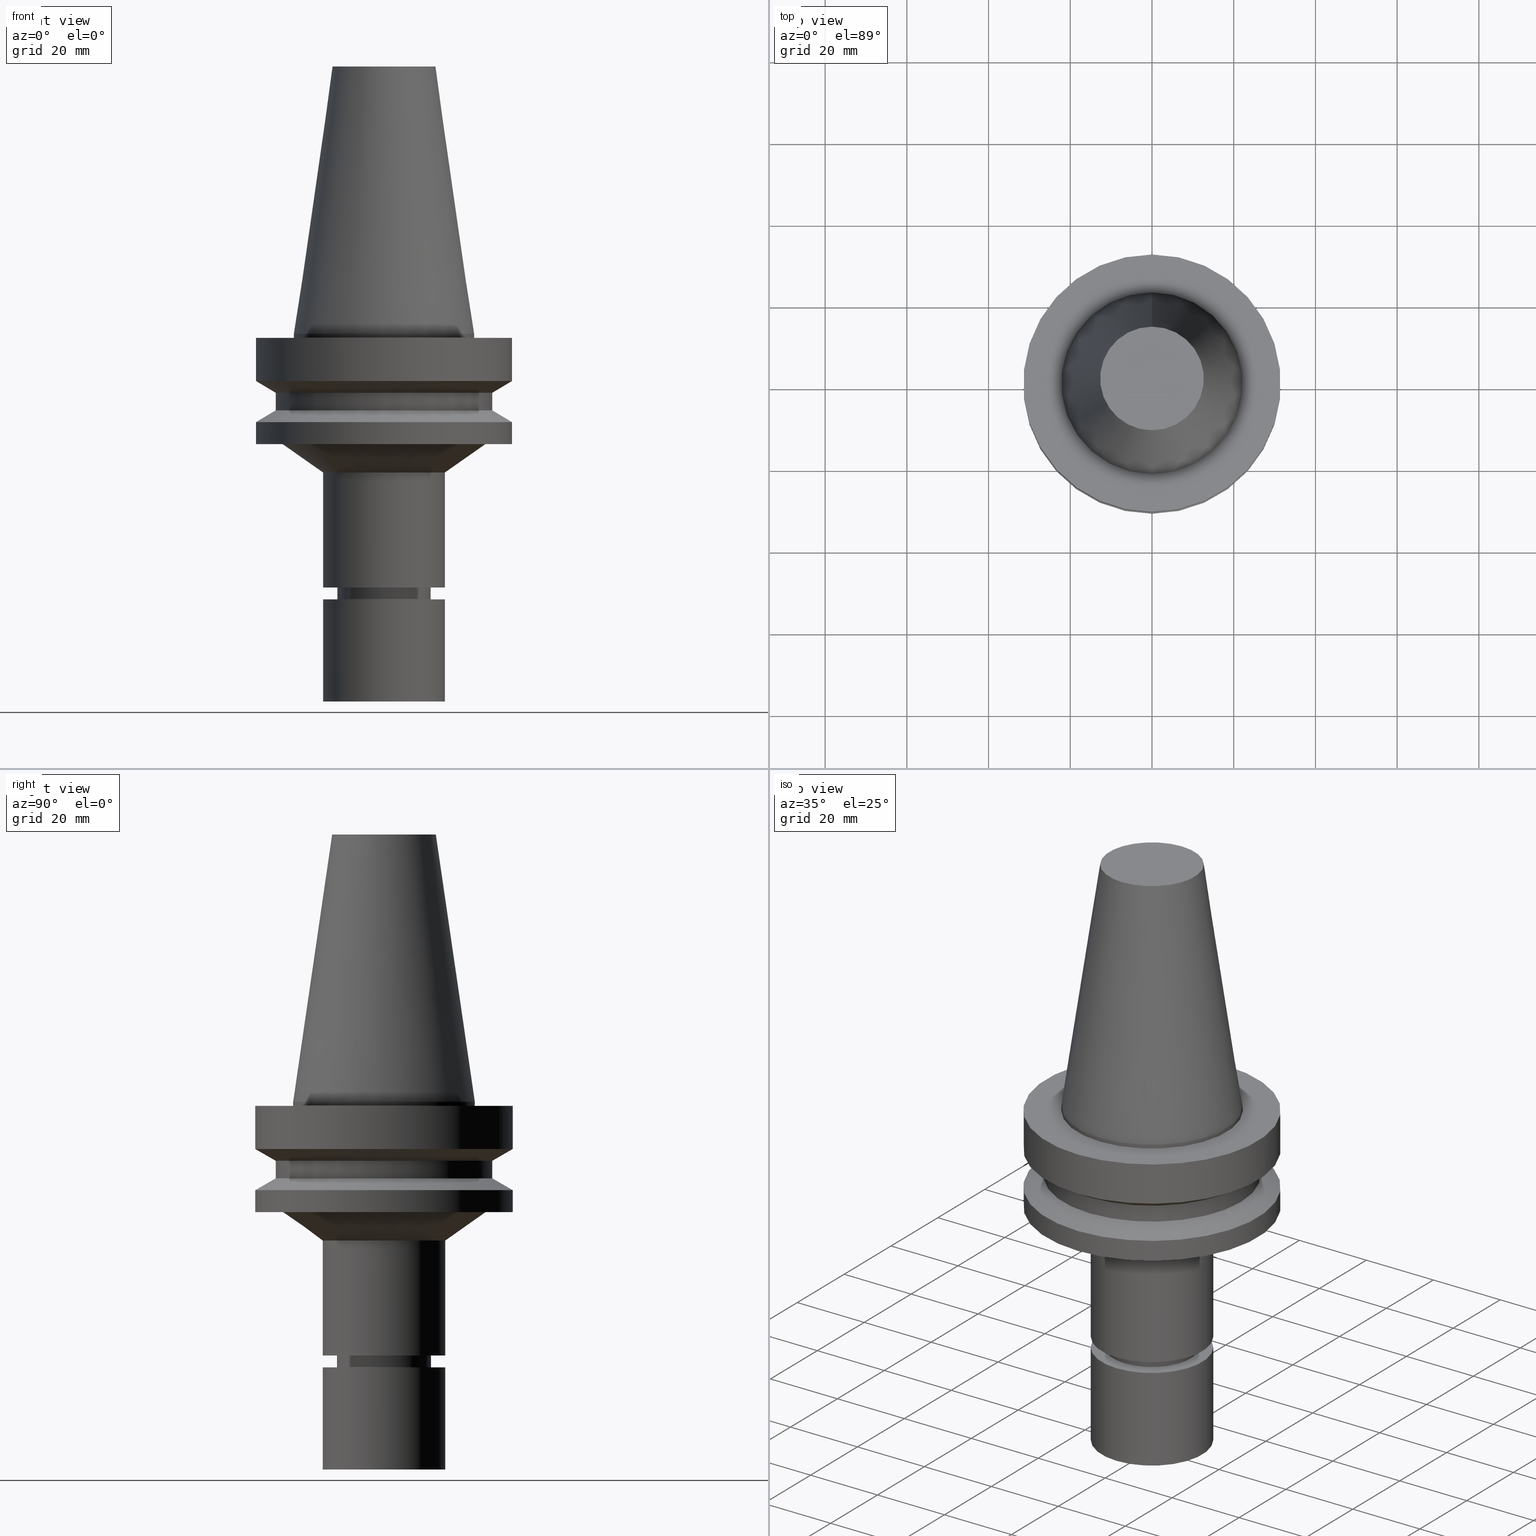
[diagram: canonical four-view strip — front | top / right | iso, engineering-drawing reading convention]
A machine part, canonical four-view strip (front | top / right | iso — engineering-drawing reading convention). The complete STEP part file that produces these views, byte-faithful:
ISO-10303-21;
HEADER;
FILE_DESCRIPTION((''),'1');
FILE_NAME('V:/90_\X2\53D65F9730C730FC30BF\X0\/00_\X2\6DE18DEF30C730FC30BF\X0\/ALL/BBT-BKUS\X2\FF76FF80FF9BFF78FF9E752852A05DE556F3\X0\201801/BBT40-MEGAER/BBT40-MEGAER16-90NL.stp','2018-02-07T01:42:59',(''),(''),'Spatial Interop R21 SP3','Kubotek KeyCreator 2011 V10.0.2 (22737)',' ');
FILE_SCHEMA(('automotive_design'));
ENDSEC;
DATA;
#1=MECHANICAL_DESIGN_GEOMETRIC_PRESENTATION_REPRESENTATION(' ',(#14,#15,#16,#17,#18,#19,#20,#21,#22,#23,#24,#25,#26,#27,#28,#29,#30,#31,#32,#33,#34,#35,#36,#37,#38,#39,#40,#41,#42,#43,#44,#45,#46,#47,#48,#49,#50,#51,#52,#53,#54,#55),#10);
#2=PRODUCT_DEFINITION_CONTEXT('',#56,'design');
#3=APPLICATION_PROTOCOL_DEFINITION('INTERNATIONAL STANDARD','automotive_design',1994,#56);
#4=PRODUCT_CATEGORY_RELATIONSHIP('NONE','NONE',#57,#58);
#5=SHAPE_DEFINITION_REPRESENTATION(#59,#60);
#6=PRODUCT_DEFINITION_CONTEXT('',#61,'design');
#7=APPLICATION_PROTOCOL_DEFINITION('INTERNATIONAL STANDARD','automotive_design',1994,#61);
#8=PRODUCT_CATEGORY_RELATIONSHIP('NONE','NONE',#62,#63);
#9=SHAPE_DEFINITION_REPRESENTATION(#64,#65);
#10= (GEOMETRIC_REPRESENTATION_CONTEXT(3)GLOBAL_UNCERTAINTY_ASSIGNED_CONTEXT((#68))GLOBAL_UNIT_ASSIGNED_CONTEXT((#70,#71,#72))REPRESENTATION_CONTEXT('NONE','WORKSPACE'));
#14=STYLED_ITEM('',(#74),#75);
#15=STYLED_ITEM('',(#76,#77),#78);
#16=STYLED_ITEM('',(#79),#80);
#17=STYLED_ITEM('',(#81),#82);
#18=STYLED_ITEM('',(#83),#84);
#19=STYLED_ITEM('',(#85),#86);
#20=STYLED_ITEM('',(#87),#88);
#21=STYLED_ITEM('',(#89,#90),#91);
#22=STYLED_ITEM('',(#92,#93),#94);
#23=STYLED_ITEM('',(#95,#96),#97);
#24=STYLED_ITEM('',(#98),#99);
#25=STYLED_ITEM('',(#100,#101),#102);
#26=STYLED_ITEM('',(#103),#104);
#27=STYLED_ITEM('',(#105,#106),#107);
#28=STYLED_ITEM('',(#108),#109);
#29=STYLED_ITEM('',(#110,#111),#112);
#30=STYLED_ITEM('',(#113,#114),#115);
#31=STYLED_ITEM('',(#116),#117);
#32=STYLED_ITEM('',(#118,#119),#120);
#33=STYLED_ITEM('',(#121,#122),#123);
#34=STYLED_ITEM('',(#124,#125),#126);
#35=STYLED_ITEM('',(#127,#128),#129);
#36=STYLED_ITEM('',(#130),#131);
#37=STYLED_ITEM('',(#132),#133);
#38=STYLED_ITEM('',(#134,#135),#136);
#39=STYLED_ITEM('',(#137,#138),#139);
#40=STYLED_ITEM('',(#140),#141);
#41=STYLED_ITEM('',(#142,#143),#144);
#42=STYLED_ITEM('',(#145,#146),#147);
#43=STYLED_ITEM('',(#148),#149);
#44=STYLED_ITEM('',(#150),#151);
#45=STYLED_ITEM('',(#152,#153),#154);
#46=STYLED_ITEM('',(#155,#156),#157);
#47=STYLED_ITEM('',(#158,#159),#160);
#48=STYLED_ITEM('',(#161,#162),#163);
#49=STYLED_ITEM('',(#164),#165);
#50=STYLED_ITEM('',(#166),#167);
#51=STYLED_ITEM('',(#168,#169),#170);
#52=STYLED_ITEM('',(#171),#172);
#53=STYLED_ITEM('',(#173,#174),#175);
#54=STYLED_ITEM('',(#176),#177);
#55=STYLED_ITEM('',(#178,#179),#180);
#56=APPLICATION_CONTEXT(' ');
#57=PRODUCT_CATEGORY('part','NONE');
#58=PRODUCT_RELATED_PRODUCT_CATEGORY('detail',' ',(#181));
#59=PRODUCT_DEFINITION_SHAPE('NONE','NONE',#182);
#60=ADVANCED_BREP_SHAPE_REPRESENTATION('Unnamed[1]',(#147,#183),#10);
#61=APPLICATION_CONTEXT(' ');
#62=PRODUCT_CATEGORY('part','NONE');
#63=PRODUCT_RELATED_PRODUCT_CATEGORY('detail',' ',(#184));
#64=PRODUCT_DEFINITION_SHAPE('NONE','NONE',#185);
#65=ADVANCED_BREP_SHAPE_REPRESENTATION('Unnamed[1]',(#107,#186),#10);
#68=UNCERTAINTY_MEASURE_WITH_UNIT(LENGTH_MEASURE(1.0E-006),#70,'','');
#70= (CONVERSION_BASED_UNIT('MILLIMETRE',#189)LENGTH_UNIT()NAMED_UNIT(#192));
#71= (NAMED_UNIT(#194)PLANE_ANGLE_UNIT()SI_UNIT($,.RADIAN.));
#72= (NAMED_UNIT(#194)SOLID_ANGLE_UNIT()SI_UNIT($,.STERADIAN.));
#74=PRESENTATION_STYLE_ASSIGNMENT((#200));
#75=EDGE_CURVE('Unnamed[1]',#201,#201,#202,.T.);
#76=PRESENTATION_STYLE_ASSIGNMENT((#203));
#77=PRESENTATION_STYLE_ASSIGNMENT((#204));
#78=ADVANCED_FACE('Unnamed[1]',(#205,#206),#207,.T.);
#79=PRESENTATION_STYLE_ASSIGNMENT((#208));
#80=EDGE_CURVE('Unnamed[1]',#209,#209,#210,.T.);
#81=PRESENTATION_STYLE_ASSIGNMENT((#211));
#82=EDGE_CURVE('Unnamed[1]',#212,#212,#213,.T.);
#83=PRESENTATION_STYLE_ASSIGNMENT((#214));
#84=EDGE_CURVE('Unnamed[1]',#215,#215,#216,.T.);
#85=PRESENTATION_STYLE_ASSIGNMENT((#217));
#86=EDGE_CURVE('Unnamed[1]',#218,#218,#219,.T.);
#87=PRESENTATION_STYLE_ASSIGNMENT((#220));
#88=EDGE_CURVE('Unnamed[1]',#221,#221,#222,.T.);
#89=PRESENTATION_STYLE_ASSIGNMENT((#223));
#90=PRESENTATION_STYLE_ASSIGNMENT((#224));
#91=ADVANCED_FACE('Unnamed[1]',(#225,#226),#227,.T.);
#92=PRESENTATION_STYLE_ASSIGNMENT((#228));
#93=PRESENTATION_STYLE_ASSIGNMENT((#229));
#94=ADVANCED_FACE('Unnamed[1]',(#230,#231),#232,.T.);
#95=PRESENTATION_STYLE_ASSIGNMENT((#233));
#96=PRESENTATION_STYLE_ASSIGNMENT((#234));
#97=ADVANCED_FACE('Unnamed[1]',(#235,#236),#237,.T.);
#98=PRESENTATION_STYLE_ASSIGNMENT((#238));
#99=EDGE_CURVE('Unnamed[1]',#239,#239,#240,.T.);
#100=PRESENTATION_STYLE_ASSIGNMENT((#241));
#101=PRESENTATION_STYLE_ASSIGNMENT((#242));
#102=ADVANCED_FACE('Unnamed[1]',(#243,#244),#245,.T.);
#103=PRESENTATION_STYLE_ASSIGNMENT((#246));
#104=EDGE_CURVE('Unnamed[1]',#247,#247,#248,.T.);
#105=PRESENTATION_STYLE_ASSIGNMENT((#249));
#106=PRESENTATION_STYLE_ASSIGNMENT((#250));
#107=MANIFOLD_SOLID_BREP('Unnamed[1]',#251);
#108=PRESENTATION_STYLE_ASSIGNMENT((#252));
#109=EDGE_CURVE('Unnamed[1]',#253,#253,#254,.T.);
#110=PRESENTATION_STYLE_ASSIGNMENT((#255));
#111=PRESENTATION_STYLE_ASSIGNMENT((#256));
#112=ADVANCED_FACE('Unnamed[1]',(#257,#258),#259,.T.);
#113=PRESENTATION_STYLE_ASSIGNMENT((#260));
#114=PRESENTATION_STYLE_ASSIGNMENT((#261));
#115=ADVANCED_FACE('Unnamed[1]',(#262),#263,.T.);
#116=PRESENTATION_STYLE_ASSIGNMENT((#264));
#117=EDGE_CURVE('Unnamed[1]',#265,#265,#266,.T.);
#118=PRESENTATION_STYLE_ASSIGNMENT((#267));
#119=PRESENTATION_STYLE_ASSIGNMENT((#268));
#120=ADVANCED_FACE('Unnamed[1]',(#269,#270),#271,.T.);
#121=PRESENTATION_STYLE_ASSIGNMENT((#272));
#122=PRESENTATION_STYLE_ASSIGNMENT((#273));
#123=ADVANCED_FACE('Unnamed[1]',(#274,#275),#276,.T.);
#124=PRESENTATION_STYLE_ASSIGNMENT((#277));
#125=PRESENTATION_STYLE_ASSIGNMENT((#278));
#126=ADVANCED_FACE('Unnamed[1]',(#279,#280),#281,.T.);
#127=PRESENTATION_STYLE_ASSIGNMENT((#282));
#128=PRESENTATION_STYLE_ASSIGNMENT((#283));
#129=ADVANCED_FACE('Unnamed[1]',(#284,#285),#286,.T.);
#130=PRESENTATION_STYLE_ASSIGNMENT((#287));
#131=EDGE_CURVE('Unnamed[1]',#288,#288,#289,.T.);
#132=PRESENTATION_STYLE_ASSIGNMENT((#290));
#133=EDGE_CURVE('Unnamed[1]',#291,#291,#292,.T.);
#134=PRESENTATION_STYLE_ASSIGNMENT((#293));
#135=PRESENTATION_STYLE_ASSIGNMENT((#294));
#136=ADVANCED_FACE('Unnamed[1]',(#295),#296,.T.);
#137=PRESENTATION_STYLE_ASSIGNMENT((#297));
#138=PRESENTATION_STYLE_ASSIGNMENT((#298));
#139=ADVANCED_FACE('Unnamed[1]',(#299,#300),#301,.T.);
#140=PRESENTATION_STYLE_ASSIGNMENT((#302));
#141=EDGE_CURVE('Unnamed[1]',#303,#303,#304,.T.);
#142=PRESENTATION_STYLE_ASSIGNMENT((#305));
#143=PRESENTATION_STYLE_ASSIGNMENT((#306));
#144=ADVANCED_FACE('Unnamed[1]',(#307),#308,.T.);
#145=PRESENTATION_STYLE_ASSIGNMENT((#309));
#146=PRESENTATION_STYLE_ASSIGNMENT((#310));
#147=MANIFOLD_SOLID_BREP('Unnamed[1]',#311);
#148=PRESENTATION_STYLE_ASSIGNMENT((#312));
#149=EDGE_CURVE('Unnamed[1]',#313,#313,#314,.T.);
#150=PRESENTATION_STYLE_ASSIGNMENT((#315));
#151=EDGE_CURVE('Unnamed[1]',#316,#316,#317,.T.);
#152=PRESENTATION_STYLE_ASSIGNMENT((#318));
#153=PRESENTATION_STYLE_ASSIGNMENT((#319));
#154=ADVANCED_FACE('Unnamed[1]',(#320),#321,.T.);
#155=PRESENTATION_STYLE_ASSIGNMENT((#322));
#156=PRESENTATION_STYLE_ASSIGNMENT((#323));
#157=ADVANCED_FACE('Unnamed[1]',(#324,#325),#326,.T.);
#158=PRESENTATION_STYLE_ASSIGNMENT((#327));
#159=PRESENTATION_STYLE_ASSIGNMENT((#328));
#160=ADVANCED_FACE('Unnamed[1]',(#329,#330),#331,.T.);
#161=PRESENTATION_STYLE_ASSIGNMENT((#332));
#162=PRESENTATION_STYLE_ASSIGNMENT((#333));
#163=ADVANCED_FACE('Unnamed[1]',(#334,#335),#336,.T.);
#164=PRESENTATION_STYLE_ASSIGNMENT((#337));
#165=EDGE_CURVE('Unnamed[1]',#338,#338,#339,.T.);
#166=PRESENTATION_STYLE_ASSIGNMENT((#340));
#167=EDGE_CURVE('Unnamed[1]',#341,#341,#342,.T.);
#168=PRESENTATION_STYLE_ASSIGNMENT((#343));
#169=PRESENTATION_STYLE_ASSIGNMENT((#344));
#170=ADVANCED_FACE('Unnamed[1]',(#345,#346),#347,.T.);
#171=PRESENTATION_STYLE_ASSIGNMENT((#348));
#172=EDGE_CURVE('Unnamed[1]',#349,#349,#350,.T.);
#173=PRESENTATION_STYLE_ASSIGNMENT((#351));
#174=PRESENTATION_STYLE_ASSIGNMENT((#352));
#175=ADVANCED_FACE('Unnamed[1]',(#353,#354),#355,.T.);
#176=PRESENTATION_STYLE_ASSIGNMENT((#356));
#177=EDGE_CURVE('Unnamed[1]',#357,#357,#358,.T.);
#178=PRESENTATION_STYLE_ASSIGNMENT((#359));
#179=PRESENTATION_STYLE_ASSIGNMENT((#360));
#180=ADVANCED_FACE('Unnamed[1]',(#361,#362),#363,.T.);
#181=PRODUCT('Unnamed[1]','Unnamed[1]','PART-Unnamed[1]-DESC',(#364));
#182=PRODUCT_DEFINITION('NONE','NONE',#365,#2);
#183=AXIS2_PLACEMENT_3D('',#366,#367,#368);
#184=PRODUCT('Unnamed[1]','Unnamed[1]','PART-Unnamed[1]-DESC',(#369));
#185=PRODUCT_DEFINITION('NONE','NONE',#370,#6);
#186=AXIS2_PLACEMENT_3D('',#371,#372,#373);
#189=LENGTH_MEASURE_WITH_UNIT(LENGTH_MEASURE(1.0),#374);
#192=DIMENSIONAL_EXPONENTS(1.0,0.0,0.0,0.0,0.0,0.0,0.0);
#194=DIMENSIONAL_EXPONENTS(0.0,0.0,0.0,0.0,0.0,0.0,0.0);
#200=CURVE_STYLE('',#375,POSITIVE_LENGTH_MEASURE(1000.0),#376);
#201=VERTEX_POINT('',#377);
#202=CIRCLE('',#378,31.5000000000006);
#203=SURFACE_STYLE_USAGE(.BOTH.,#379);
#204=CURVE_STYLE('',#380,POSITIVE_LENGTH_MEASURE(1000.0),#381);
#205=FACE_BOUND('',#382,.T.);
#206=FACE_BOUND('',#383,.T.);
#207=CYLINDRICAL_SURFACE('',#384,22.225);
#208=CURVE_STYLE('',#385,POSITIVE_LENGTH_MEASURE(1000.0),#386);
#209=VERTEX_POINT('',#387);
#210=CIRCLE('',#388,15.0000000000004);
#211=CURVE_STYLE('',#389,POSITIVE_LENGTH_MEASURE(1000.0),#390);
#212=VERTEX_POINT('',#391);
#213=CIRCLE('',#392,15.0);
#214=CURVE_STYLE('',#393,POSITIVE_LENGTH_MEASURE(1000.0),#394);
#215=VERTEX_POINT('',#395);
#216=CIRCLE('',#396,11.4999999999906);
#217=CURVE_STYLE('',#397,POSITIVE_LENGTH_MEASURE(1000.0),#398);
#218=VERTEX_POINT('',#399);
#219=CIRCLE('',#400,9.89999999999952);
#220=CURVE_STYLE('',#401,POSITIVE_LENGTH_MEASURE(1000.0),#402);
#221=VERTEX_POINT('',#403);
#222=CIRCLE('',#404,14.9999999999999);
#223=SURFACE_STYLE_USAGE(.BOTH.,#405);
#224=CURVE_STYLE('',#406,POSITIVE_LENGTH_MEASURE(1000.0),#407);
#225=FACE_BOUND('',#408,.T.);
#226=FACE_BOUND('',#409,.T.);
#227=CYLINDRICAL_SURFACE('',#410,11.4999999999963);
#228=SURFACE_STYLE_USAGE(.BOTH.,#411);
#229=CURVE_STYLE('',#412,POSITIVE_LENGTH_MEASURE(1000.0),#413);
#230=FACE_BOUND('',#414,.T.);
#231=FACE_BOUND('',#415,.T.);
#232=CYLINDRICAL_SURFACE('',#416,11.0);
#233=SURFACE_STYLE_USAGE(.BOTH.,#417);
#234=CURVE_STYLE('',#418,POSITIVE_LENGTH_MEASURE(1000.0),#419);
#235=FACE_BOUND('',#420,.T.);
#236=FACE_BOUND('',#421,.T.);
#237=CYLINDRICAL_SURFACE('',#422,15.0);
#238=CURVE_STYLE('',#423,POSITIVE_LENGTH_MEASURE(1000.0),#424);
#239=VERTEX_POINT('',#425);
#240=CIRCLE('',#426,15.0);
#241=SURFACE_STYLE_USAGE(.BOTH.,#427);
#242=CURVE_STYLE('',#428,POSITIVE_LENGTH_MEASURE(1000.0),#429);
#243=FACE_BOUND('',#430,.T.);
#244=FACE_OUTER_BOUND('',#431,.T.);
#245=PLANE('',#432);
#246=CURVE_STYLE('',#433,POSITIVE_LENGTH_MEASURE(1000.0),#434);
#247=VERTEX_POINT('',#435);
#248=CIRCLE('',#436,11.500000000002);
#249=SURFACE_STYLE_USAGE(.BOTH.,#437);
#250=CURVE_STYLE('',#438,POSITIVE_LENGTH_MEASURE(1000.0),#439);
#251=CLOSED_SHELL('',(#154,#136,#97));
#252=CURVE_STYLE('',#440,POSITIVE_LENGTH_MEASURE(1000.0),#441);
#253=VERTEX_POINT('',#442);
#254=CIRCLE('',#443,24.8688249295048);
#255=SURFACE_STYLE_USAGE(.BOTH.,#444);
#256=CURVE_STYLE('',#445,POSITIVE_LENGTH_MEASURE(1000.0),#446);
#257=FACE_BOUND('',#447,.T.);
#258=FACE_BOUND('',#448,.T.);
#259=CONICAL_SURFACE('',#449,11.2500000000009,1.04719755118904);
#260=SURFACE_STYLE_USAGE(.BOTH.,#450);
#261=CURVE_STYLE('',#451,POSITIVE_LENGTH_MEASURE(1000.0),#452);
#262=FACE_OUTER_BOUND('',#453,.T.);
#263=PLANE('',#454);
#264=CURVE_STYLE('',#455,POSITIVE_LENGTH_MEASURE(1000.0),#456);
#265=VERTEX_POINT('',#457);
#266=CIRCLE('',#458,22.225);
#267=SURFACE_STYLE_USAGE(.BOTH.,#459);
#268=CURVE_STYLE('',#460,POSITIVE_LENGTH_MEASURE(1000.0),#461);
#269=FACE_BOUND('',#462,.T.);
#270=FACE_OUTER_BOUND('',#463,.T.);
#271=PLANE('',#464);
#272=SURFACE_STYLE_USAGE(.BOTH.,#465);
#273=CURVE_STYLE('',#466,POSITIVE_LENGTH_MEASURE(1000.0),#467);
#274=FACE_BOUND('',#468,.T.);
#275=FACE_BOUND('',#469,.T.);
#276=CYLINDRICAL_SURFACE('',#470,31.5);
#277=SURFACE_STYLE_USAGE(.BOTH.,#471);
#278=CURVE_STYLE('',#472,POSITIVE_LENGTH_MEASURE(1000.0),#473);
#279=FACE_BOUND('',#474,.T.);
#280=FACE_BOUND('',#475,.T.);
#281=CONICAL_SURFACE('',#476,17.45625,0.144812498238936);
#282=SURFACE_STYLE_USAGE(.BOTH.,#477);
#283=CURVE_STYLE('',#478,POSITIVE_LENGTH_MEASURE(1000.0),#479);
#284=FACE_BOUND('',#480,.T.);
#285=FACE_BOUND('',#481,.T.);
#286=CYLINDRICAL_SURFACE('',#482,31.5000000000005);
#287=CURVE_STYLE('',#483,POSITIVE_LENGTH_MEASURE(1000.0),#484);
#288=VERTEX_POINT('',#485);
#289=CIRCLE('',#486,31.5000000000003);
#290=CURVE_STYLE('',#487,POSITIVE_LENGTH_MEASURE(1000.0),#488);
#291=VERTEX_POINT('',#489);
#292=CIRCLE('',#490,31.5000000000003);
#293=SURFACE_STYLE_USAGE(.BOTH.,#491);
#294=CURVE_STYLE('',#492,POSITIVE_LENGTH_MEASURE(1000.0),#493);
#295=FACE_OUTER_BOUND('',#494,.T.);
#296=PLANE('',#495);
#297=SURFACE_STYLE_USAGE(.BOTH.,#496);
#298=CURVE_STYLE('',#497,POSITIVE_LENGTH_MEASURE(1000.0),#498);
#299=FACE_BOUND('',#499,.T.);
#300=FACE_BOUND('',#500,.T.);
#301=CONICAL_SURFACE('',#501,29.0000000000003,1.04719755119651);
#302=CURVE_STYLE('',#502,POSITIVE_LENGTH_MEASURE(1000.0),#503);
#303=VERTEX_POINT('',#504);
#304=CIRCLE('',#505,11.0000000000002);
#305=SURFACE_STYLE_USAGE(.BOTH.,#506);
#306=CURVE_STYLE('',#507,POSITIVE_LENGTH_MEASURE(1000.0),#508);
#307=FACE_OUTER_BOUND('',#509,.T.);
#308=PLANE('',#510);
#309=SURFACE_STYLE_USAGE(.BOTH.,#511);
#310=CURVE_STYLE('',#512,POSITIVE_LENGTH_MEASURE(1000.0),#513);
#311=CLOSED_SHELL('',(#144,#126,#78,#163,#123,#160,#170,#139,#129,#120,#175,#157,#102,#91,#112,#94,#180,#115));
#312=CURVE_STYLE('',#514,POSITIVE_LENGTH_MEASURE(1000.0),#515);
#313=VERTEX_POINT('',#516);
#314=CIRCLE('',#517,31.4999999999996);
#315=CURVE_STYLE('',#518,POSITIVE_LENGTH_MEASURE(1000.0),#519);
#316=VERTEX_POINT('',#520);
#317=CIRCLE('',#521,10.9999999999998);
#318=SURFACE_STYLE_USAGE(.BOTH.,#522);
#319=CURVE_STYLE('',#523,POSITIVE_LENGTH_MEASURE(1000.0),#524);
#320=FACE_OUTER_BOUND('',#525,.T.);
#321=PLANE('',#526);
#322=SURFACE_STYLE_USAGE(.BOTH.,#527);
#323=CURVE_STYLE('',#528,POSITIVE_LENGTH_MEASURE(1000.0),#529);
#324=FACE_BOUND('',#530,.T.);
#325=FACE_BOUND('',#531,.T.);
#326=CYLINDRICAL_SURFACE('',#532,15.0000000000002);
#327=SURFACE_STYLE_USAGE(.BOTH.,#533);
#328=CURVE_STYLE('',#534,POSITIVE_LENGTH_MEASURE(1000.0),#535);
#329=FACE_BOUND('',#536,.T.);
#330=FACE_BOUND('',#537,.T.);
#331=CONICAL_SURFACE('',#538,28.9999999999999,1.04719755119657);
#332=SURFACE_STYLE_USAGE(.BOTH.,#539);
#333=CURVE_STYLE('',#540,POSITIVE_LENGTH_MEASURE(1000.0),#541);
#334=FACE_OUTER_BOUND('',#542,.T.);
#335=FACE_BOUND('',#543,.T.);
#336=PLANE('',#544);
#337=CURVE_STYLE('',#545,POSITIVE_LENGTH_MEASURE(1000.0),#546);
#338=VERTEX_POINT('',#547);
#339=CIRCLE('',#548,12.6875000000001);
#340=CURVE_STYLE('',#549,POSITIVE_LENGTH_MEASURE(1000.0),#550);
#341=VERTEX_POINT('',#551);
#342=CIRCLE('',#552,26.4999999999994);
#343=SURFACE_STYLE_USAGE(.BOTH.,#553);
#344=CURVE_STYLE('',#554,POSITIVE_LENGTH_MEASURE(1000.0),#555);
#345=FACE_BOUND('',#556,.T.);
#346=FACE_BOUND('',#557,.T.);
#347=CYLINDRICAL_SURFACE('',#558,26.4999999999997);
#348=CURVE_STYLE('',#559,POSITIVE_LENGTH_MEASURE(1000.0),#560);
#349=VERTEX_POINT('',#561);
#350=CIRCLE('',#562,26.5);
#351=SURFACE_STYLE_USAGE(.BOTH.,#563);
#352=CURVE_STYLE('',#564,POSITIVE_LENGTH_MEASURE(1000.0),#565);
#353=FACE_BOUND('',#566,.T.);
#354=FACE_BOUND('',#567,.T.);
#355=CONICAL_SURFACE('',#568,19.9344124647526,0.956240827688239);
#356=CURVE_STYLE('',#569,POSITIVE_LENGTH_MEASURE(1000.0),#570);
#357=VERTEX_POINT('',#571);
#358=CIRCLE('',#572,22.225);
#359=SURFACE_STYLE_USAGE(.BOTH.,#573);
#360=CURVE_STYLE('',#574,POSITIVE_LENGTH_MEASURE(1000.0),#575);
#361=FACE_BOUND('',#576,.T.);
#362=FACE_BOUND('',#577,.T.);
#363=CONICAL_SURFACE('',#578,10.4499999999999,0.523598775598227);
#364=PRODUCT_CONTEXT('',#56,'mechanical');
#365=PRODUCT_DEFINITION_FORMATION_WITH_SPECIFIED_SOURCE(' ','NONE',#181,.NOT_KNOWN.);
#366=CARTESIAN_POINT('',(0.0,0.0,0.0));
#367=DIRECTION('',(0.0,0.0,1.0));
#368=DIRECTION('',(1.0,0.0,0.0));
#369=PRODUCT_CONTEXT('',#61,'mechanical');
#370=PRODUCT_DEFINITION_FORMATION_WITH_SPECIFIED_SOURCE(' ','NONE',#184,.NOT_KNOWN.);
#371=CARTESIAN_POINT('',(0.0,0.0,0.0));
#372=DIRECTION('',(0.0,0.0,1.0));
#373=DIRECTION('',(1.0,0.0,0.0));
#374= (NAMED_UNIT(#192)LENGTH_UNIT()SI_UNIT(.MILLI.,.METRE.));
#375=DRAUGHTING_PRE_DEFINED_CURVE_FONT('continuous');
#376=COLOUR_RGB('',0.0,1.0,0.0);
#377=CARTESIAN_POINT('',(1.32473071268174E-015,31.5000000000007,-21.6344943473346));
#378=AXIS2_PLACEMENT_3D('',#580,#581,#582);
#379=SURFACE_SIDE_STYLE('',(#583));
#380=DRAUGHTING_PRE_DEFINED_CURVE_FONT('continuous');
#381=COLOUR_RGB('',0.0,1.0,0.0);
#382=EDGE_LOOP('',(#584));
#383=EDGE_LOOP('',(#585));
#384=AXIS2_PLACEMENT_3D('',#586,#587,#588);
#385=DRAUGHTING_PRE_DEFINED_CURVE_FONT('continuous');
#386=COLOUR_RGB('',0.0,1.0,0.0);
#387=CARTESIAN_POINT('',(2.07973442388956E-015,15.0000000000004,-33.9646406676203));
#388=AXIS2_PLACEMENT_3D('',#589,#590,#591);
#389=DRAUGHTING_PRE_DEFINED_CURVE_FONT('continuous');
#390=COLOUR_RGB('',0.0,1.0,0.0);
#391=CARTESIAN_POINT('',(3.80252831135249E-015,15.0000000000001,-62.0999999999994));
#392=AXIS2_PLACEMENT_3D('',#592,#593,#594);
#393=DRAUGHTING_PRE_DEFINED_CURVE_FONT('continuous');
#394=COLOUR_RGB('',0.0,1.0,0.0);
#395=CARTESIAN_POINT('',(3.80252831135254E-015,11.4999999999907,-62.1000000000001));
#396=AXIS2_PLACEMENT_3D('',#595,#596,#597);
#397=DRAUGHTING_PRE_DEFINED_CURVE_FONT('continuous');
#398=COLOUR_RGB('',0.0,1.0,0.0);
#399=CARTESIAN_POINT('',(4.9720660045382E-015,9.89999999999959,-81.1999999999992));
#400=AXIS2_PLACEMENT_3D('',#598,#599,#600);
#401=DRAUGHTING_PRE_DEFINED_CURVE_FONT('continuous');
#402=COLOUR_RGB('',0.0,1.0,0.0);
#403=CARTESIAN_POINT('',(5.51091059616309E-015,15.0,-90.0));
#404=AXIS2_PLACEMENT_3D('',#601,#602,#603);
#405=SURFACE_SIDE_STYLE('',(#604));
#406=DRAUGHTING_PRE_DEFINED_CURVE_FONT('continuous');
#407=COLOUR_RGB('',0.0,1.0,0.0);
#408=EDGE_LOOP('',(#605));
#409=EDGE_LOOP('',(#606));
#410=AXIS2_PLACEMENT_3D('',#607,#608,#609);
#411=SURFACE_SIDE_STYLE('',(#610));
#412=DRAUGHTING_PRE_DEFINED_CURVE_FONT('continuous');
#413=COLOUR_RGB('',0.0,1.0,0.0);
#414=EDGE_LOOP('',(#611));
#415=EDGE_LOOP('',(#612));
#416=AXIS2_PLACEMENT_3D('',#613,#614,#615);
#417=SURFACE_SIDE_STYLE('',(#616));
#418=DRAUGHTING_PRE_DEFINED_CURVE_FONT('continuous');
#419=COLOUR_RGB('',0.0,1.0,0.0);
#420=EDGE_LOOP('',(#617));
#421=EDGE_LOOP('',(#618));
#422=AXIS2_PLACEMENT_3D('',#619,#620,#621);
#423=DRAUGHTING_PRE_DEFINED_CURVE_FONT('continuous');
#424=COLOUR_RGB('',0.0,1.0,0.0);
#425=CARTESIAN_POINT('',(3.9801020972289E-015,15.0000000000001,-65.0));
#426=AXIS2_PLACEMENT_3D('',#622,#623,#624);
#427=SURFACE_SIDE_STYLE('',(#625));
#428=DRAUGHTING_PRE_DEFINED_CURVE_FONT('continuous');
#429=COLOUR_RGB('',0.0,1.0,0.0);
#430=EDGE_LOOP('',(#626));
#431=EDGE_LOOP('',(#627));
#432=AXIS2_PLACEMENT_3D('',#628,#629,#630);
#433=DRAUGHTING_PRE_DEFINED_CURVE_FONT('continuous');
#434=COLOUR_RGB('',0.0,1.0,0.0);
#435=CARTESIAN_POINT('',(4.15836933111324E-015,11.5000000000021,-67.9113248653973));
#436=AXIS2_PLACEMENT_3D('',#631,#632,#633);
#437=SURFACE_SIDE_STYLE('',(#634));
#438=DRAUGHTING_PRE_DEFINED_CURVE_FONT('continuous');
#439=COLOUR_RGB('',0.0,1.0,0.0);
#440=DRAUGHTING_PRE_DEFINED_CURVE_FONT('continuous');
#441=COLOUR_RGB('',0.0,1.0,0.0);
#442=CARTESIAN_POINT('',(1.65327317884891E-015,24.8688249295049,-26.9999999999998));
#443=AXIS2_PLACEMENT_3D('',#635,#636,#637);
#444=SURFACE_SIDE_STYLE('',(#638));
#445=DRAUGHTING_PRE_DEFINED_CURVE_FONT('continuous');
#446=COLOUR_RGB('',0.0,1.0,0.0);
#447=EDGE_LOOP('',(#639));
#448=EDGE_LOOP('',(#640));
#449=AXIS2_PLACEMENT_3D('',#641,#642,#643);
#450=SURFACE_SIDE_STYLE('',(#644));
#451=DRAUGHTING_PRE_DEFINED_CURVE_FONT('continuous');
#452=COLOUR_RGB('',0.0,1.0,0.0);
#453=EDGE_LOOP('',(#645));
#454=AXIS2_PLACEMENT_3D('',#646,#647,#648);
#455=DRAUGHTING_PRE_DEFINED_CURVE_FONT('continuous');
#456=COLOUR_RGB('',0.0,1.0,0.0);
#457=CARTESIAN_POINT('',(6.12323399573622E-017,22.2250000000001,-0.999999999999912));
#458=AXIS2_PLACEMENT_3D('',#649,#650,#651);
#459=SURFACE_SIDE_STYLE('',(#652));
#460=DRAUGHTING_PRE_DEFINED_CURVE_FONT('continuous');
#461=COLOUR_RGB('',0.0,1.0,0.0);
#462=EDGE_LOOP('',(#653));
#463=EDGE_LOOP('',(#654));
#464=AXIS2_PLACEMENT_3D('',#655,#656,#657);
#465=SURFACE_SIDE_STYLE('',(#658));
#466=DRAUGHTING_PRE_DEFINED_CURVE_FONT('continuous');
#467=COLOUR_RGB('',0.0,1.0,0.0);
#468=EDGE_LOOP('',(#659));
#469=EDGE_LOOP('',(#660));
#470=AXIS2_PLACEMENT_3D('',#661,#662,#663);
#471=SURFACE_SIDE_STYLE('',(#664));
#472=DRAUGHTING_PRE_DEFINED_CURVE_FONT('continuous');
#473=COLOUR_RGB('',0.0,1.0,0.0);
#474=EDGE_LOOP('',(#665));
#475=EDGE_LOOP('',(#666));
#476=AXIS2_PLACEMENT_3D('',#667,#668,#669);
#477=SURFACE_SIDE_STYLE('',(#670));
#478=DRAUGHTING_PRE_DEFINED_CURVE_FONT('continuous');
#479=COLOUR_RGB('',0.0,1.0,0.0);
#480=EDGE_LOOP('',(#671));
#481=EDGE_LOOP('',(#672));
#482=AXIS2_PLACEMENT_3D('',#673,#674,#675);
#483=DRAUGHTING_PRE_DEFINED_CURVE_FONT('continuous');
#484=COLOUR_RGB('',0.0,1.0,0.0);
#485=CARTESIAN_POINT('',(7.08182973902924E-016,31.5000000000004,-11.5655056526664));
#486=AXIS2_PLACEMENT_3D('',#676,#677,#678);
#487=DRAUGHTING_PRE_DEFINED_CURVE_FONT('continuous');
#488=COLOUR_RGB('',0.0,1.0,0.0);
#489=CARTESIAN_POINT('',(1.65327317884891E-015,31.5000000000004,-26.9999999999998));
#490=AXIS2_PLACEMENT_3D('',#679,#680,#681);
#491=SURFACE_SIDE_STYLE('',(#682));
#492=DRAUGHTING_PRE_DEFINED_CURVE_FONT('continuous');
#493=COLOUR_RGB('',0.0,1.0,0.0);
#494=EDGE_LOOP('',(#683));
#495=AXIS2_PLACEMENT_3D('',#684,#685,#686);
#496=SURFACE_SIDE_STYLE('',(#687));
#497=DRAUGHTING_PRE_DEFINED_CURVE_FONT('continuous');
#498=COLOUR_RGB('',0.0,1.0,0.0);
#499=EDGE_LOOP('',(#688));
#500=EDGE_LOOP('',(#689));
#501=AXIS2_PLACEMENT_3D('',#690,#691,#692);
#502=DRAUGHTING_PRE_DEFINED_CURVE_FONT('continuous');
#503=COLOUR_RGB('',0.0,1.0,0.0);
#504=CARTESIAN_POINT('',(4.85540272827837E-015,11.0000000000002,-79.2947441116719));
#505=AXIS2_PLACEMENT_3D('',#693,#694,#695);
#506=SURFACE_SIDE_STYLE('',(#696));
#507=DRAUGHTING_PRE_DEFINED_CURVE_FONT('continuous');
#508=COLOUR_RGB('',0.0,1.0,0.0);
#509=EDGE_LOOP('',(#697));
#510=AXIS2_PLACEMENT_3D('',#698,#699,#700);
#511=SURFACE_SIDE_STYLE('',(#701));
#512=DRAUGHTING_PRE_DEFINED_CURVE_FONT('continuous');
#513=COLOUR_RGB('',0.0,1.0,0.0);
#514=DRAUGHTING_PRE_DEFINED_CURVE_FONT('continuous');
#515=COLOUR_RGB('',0.0,1.0,0.0);
#516=CARTESIAN_POINT('',(6.12323399573568E-017,31.4999999999997,-0.999999999999825));
#517=AXIS2_PLACEMENT_3D('',#702,#703,#704);
#518=DRAUGHTING_PRE_DEFINED_CURVE_FONT('continuous');
#519=COLOUR_RGB('',0.0,1.0,0.0);
#520=CARTESIAN_POINT('',(4.17604558509238E-015,10.9999999999999,-68.1999999999984));
#521=AXIS2_PLACEMENT_3D('',#705,#706,#707);
#522=SURFACE_SIDE_STYLE('',(#708));
#523=DRAUGHTING_PRE_DEFINED_CURVE_FONT('continuous');
#524=COLOUR_RGB('',0.0,1.0,0.0);
#525=EDGE_LOOP('',(#709));
#526=AXIS2_PLACEMENT_3D('',#710,#711,#712);
#527=SURFACE_SIDE_STYLE('',(#713));
#528=DRAUGHTING_PRE_DEFINED_CURVE_FONT('continuous');
#529=COLOUR_RGB('',0.0,1.0,0.0);
#530=EDGE_LOOP('',(#714));
#531=EDGE_LOOP('',(#715));
#532=AXIS2_PLACEMENT_3D('',#716,#717,#718);
#533=SURFACE_SIDE_STYLE('',(#719));
#534=DRAUGHTING_PRE_DEFINED_CURVE_FONT('continuous');
#535=COLOUR_RGB('',0.0,1.0,0.0);
#536=EDGE_LOOP('',(#720));
#537=EDGE_LOOP('',(#721));
#538=AXIS2_PLACEMENT_3D('',#722,#723,#724);
#539=SURFACE_SIDE_STYLE('',(#725));
#540=DRAUGHTING_PRE_DEFINED_CURVE_FONT('continuous');
#541=COLOUR_RGB('',0.0,1.0,0.0);
#542=EDGE_LOOP('',(#726));
#543=EDGE_LOOP('',(#727));
#544=AXIS2_PLACEMENT_3D('',#728,#729,#730);
#545=DRAUGHTING_PRE_DEFINED_CURVE_FONT('continuous');
#546=COLOUR_RGB('',0.0,1.0,0.0);
#547=CARTESIAN_POINT('',(-4.00459503321185E-015,12.6875000000002,65.4000000000001));
#548=AXIS2_PLACEMENT_3D('',#731,#732,#733);
#549=DRAUGHTING_PRE_DEFINED_CURVE_FONT('continuous');
#550=COLOUR_RGB('',0.0,1.0,0.0);
#551=CARTESIAN_POINT('',(8.8494551369045E-016,26.4999999999995,-14.4522569986152));
#552=AXIS2_PLACEMENT_3D('',#734,#735,#736);
#553=SURFACE_SIDE_STYLE('',(#737));
#554=DRAUGHTING_PRE_DEFINED_CURVE_FONT('continuous');
#555=COLOUR_RGB('',0.0,1.0,0.0);
#556=EDGE_LOOP('',(#738));
#557=EDGE_LOOP('',(#739));
#558=AXIS2_PLACEMENT_3D('',#740,#741,#742);
#559=DRAUGHTING_PRE_DEFINED_CURVE_FONT('continuous');
#560=COLOUR_RGB('',0.0,1.0,0.0);
#561=CARTESIAN_POINT('',(1.1479681728942E-015,26.5,-18.7477430013855));
#562=AXIS2_PLACEMENT_3D('',#743,#744,#745);
#563=SURFACE_SIDE_STYLE('',(#746));
#564=DRAUGHTING_PRE_DEFINED_CURVE_FONT('continuous');
#565=COLOUR_RGB('',0.0,1.0,0.0);
#566=EDGE_LOOP('',(#747));
#567=EDGE_LOOP('',(#748));
#568=AXIS2_PLACEMENT_3D('',#749,#750,#751);
#569=DRAUGHTING_PRE_DEFINED_CURVE_FONT('continuous');
#570=COLOUR_RGB('',0.0,1.0,0.0);
#571=CARTESIAN_POINT('',(1.71319921032766E-029,22.2250000000001,-2.8153873565375E-013));
#572=AXIS2_PLACEMENT_3D('',#752,#753,#754);
#573=SURFACE_SIDE_STYLE('',(#755));
#574=DRAUGHTING_PRE_DEFINED_CURVE_FONT('continuous');
#575=COLOUR_RGB('',0.0,1.0,0.0);
#576=EDGE_LOOP('',(#756));
#577=EDGE_LOOP('',(#757));
#578=AXIS2_PLACEMENT_3D('',#758,#759,#760);
#580=CARTESIAN_POINT('',(1.32473071268174E-015,7.30081523566132E-014,-21.6344943473346));
#581=DIRECTION('',(6.12323399573677E-017,-4.7256395665028E-017,-1.0));
#582=DIRECTION('',(-1.93353304624816E-033,1.0,-4.7256395665028E-017));
#583=SURFACE_STYLE_FILL_AREA(#761);
#584=ORIENTED_EDGE('',*,*,#117,.F.);
#585=ORIENTED_EDGE('',*,*,#177,.T.);
#586=CARTESIAN_POINT('',(3.06161699786899E-017,7.40068923836712E-014,-0.500000000000099));
#587=DIRECTION('',(6.12323399573677E-017,-4.72563956650279E-017,-1.0));
#588=DIRECTION('',(-1.93353304624816E-033,1.0,-4.72563956650279E-017));
#589=CARTESIAN_POINT('',(2.07973442388956E-015,7.24254740834941E-014,-33.9646406676203));
#590=DIRECTION('',(6.12323399573677E-017,-4.7256395665028E-017,-1.0));
#591=DIRECTION('',(-1.93353304624816E-033,1.0,-4.7256395665028E-017));
#592=CARTESIAN_POINT('',(3.80252831135249E-015,7.10958984107055E-014,-62.0999999999994));
#593=DIRECTION('',(6.12323399573677E-017,-4.72563956650279E-017,-1.0));
#594=DIRECTION('',(-1.93353304624816E-033,1.0,-4.72563956650279E-017));
#595=CARTESIAN_POINT('',(3.80252831135254E-015,7.10958984107055E-014,-62.1000000000001));
#596=DIRECTION('',(6.12323399573677E-017,-4.72563956650279E-017,-1.0));
#597=DIRECTION('',(-1.93353304624816E-033,1.0,-4.72563956650279E-017));
#598=CARTESIAN_POINT('',(4.9720660045382E-015,7.01933012535035E-014,-81.1999999999992));
#599=DIRECTION('',(6.12323399573677E-017,-4.72563956650279E-017,-1.0));
#600=DIRECTION('',(-1.93353304624816E-033,1.0,-4.72563956650279E-017));
#601=CARTESIAN_POINT('',(5.51091059616309E-015,6.97774449716512E-014,-90.0));
#602=DIRECTION('',(6.12323399573677E-017,-4.7256395665028E-017,-1.0));
#603=DIRECTION('',(-1.93353304624816E-033,1.0,-4.72563956650279E-017));
#604=SURFACE_STYLE_FILL_AREA(#762);
#605=ORIENTED_EDGE('',*,*,#104,.F.);
#606=ORIENTED_EDGE('',*,*,#84,.T.);
#607=CARTESIAN_POINT('',(3.98044882123289E-015,7.09585872771168E-014,-65.0056624326987));
#608=DIRECTION('',(6.12323399573677E-017,-4.72563956650279E-017,-1.0));
#609=DIRECTION('',(-1.93353304624816E-033,1.0,-4.72563956650279E-017));
#610=SURFACE_STYLE_FILL_AREA(#763);
#611=ORIENTED_EDGE('',*,*,#141,.F.);
#612=ORIENTED_EDGE('',*,*,#151,.T.);
#613=CARTESIAN_POINT('',(4.51572415668538E-015,7.05454855883771E-014,-73.7473720558352));
#614=DIRECTION('',(6.12323399573677E-017,-4.7256395665028E-017,-1.0));
#615=DIRECTION('',(-1.93353304624816E-033,1.0,-4.7256395665028E-017));
#616=SURFACE_STYLE_FILL_AREA(#764);
#617=ORIENTED_EDGE('',*,*,#88,.F.);
#618=ORIENTED_EDGE('',*,*,#99,.T.);
#619=CARTESIAN_POINT('',(4.74550634669599E-015,7.0368149917464E-014,-77.5));
#620=DIRECTION('',(6.12323399573677E-017,-4.72563956650279E-017,-1.0));
#621=DIRECTION('',(-1.93353304624816E-033,1.0,-4.72563956650279E-017));
#622=CARTESIAN_POINT('',(3.9801020972289E-015,7.09588548632769E-014,-65.0));
#623=DIRECTION('',(6.12323399573677E-017,-4.72563956650279E-017,-1.0));
#624=DIRECTION('',(-1.93353304624816E-033,1.0,-4.72563956650279E-017));
#625=SURFACE_STYLE_FILL_AREA(#765);
#626=ORIENTED_EDGE('',*,*,#84,.F.);
#627=ORIENTED_EDGE('',*,*,#82,.T.);
#628=CARTESIAN_POINT('',(3.80252831135251E-015,13.2499999999954,-62.0999999999997));
#629=DIRECTION('',(6.12323399573677E-017,2.03134674896543E-013,-1.0));
#630=DIRECTION('',(-1.24432386231253E-029,1.0,2.03134674896543E-013));
#631=CARTESIAN_POINT('',(4.15836933111324E-015,7.08212761435282E-014,-67.9113248653973));
#632=DIRECTION('',(6.12323399573677E-017,-4.72563956650279E-017,-1.0));
#633=DIRECTION('',(-1.93353304624816E-033,1.0,-4.72563956650279E-017));
#634=SURFACE_STYLE_FILL_AREA(#766);
#635=CARTESIAN_POINT('',(1.65327317884891E-015,7.2754597898548E-014,-26.9999999999998));
#636=DIRECTION('',(6.12323399573677E-017,-4.7256395665028E-017,-1.0));
#637=DIRECTION('',(-1.93353304624815E-033,1.0,-4.7256395665028E-017));
#638=SURFACE_STYLE_FILL_AREA(#767);
#639=ORIENTED_EDGE('',*,*,#151,.F.);
#640=ORIENTED_EDGE('',*,*,#104,.T.);
#641=CARTESIAN_POINT('',(4.16720745810281E-015,7.08144552703385E-014,-68.0556624326979));
#642=DIRECTION('',(-6.12323399573677E-017,4.7256395665028E-017,1.0));
#643=DIRECTION('',(-1.93353304624815E-033,1.0,-4.7256395665028E-017));
#644=SURFACE_STYLE_FILL_AREA(#768);
#645=ORIENTED_EDGE('',*,*,#86,.T.);
#646=CARTESIAN_POINT('',(4.97206600453823E-015,4.94999999999983,-81.1999999999996));
#647=DIRECTION('',(6.12323399573677E-017,8.33779771528194E-014,-1.0));
#648=DIRECTION('',(-5.11025579470984E-030,1.0,8.33779771528194E-014));
#649=CARTESIAN_POINT('',(6.12323399573624E-017,7.39832641858387E-014,-0.999999999999915));
#650=DIRECTION('',(6.12323399573677E-017,-4.72563956650279E-017,-1.0));
#651=DIRECTION('',(-1.93353304624816E-033,1.0,-4.72563956650279E-017));
#652=SURFACE_STYLE_FILL_AREA(#769);
#653=ORIENTED_EDGE('',*,*,#109,.F.);
#654=ORIENTED_EDGE('',*,*,#133,.T.);
#655=CARTESIAN_POINT('',(1.65327317884891E-015,28.1844124647526,-26.9999999999998));
#656=DIRECTION('',(6.12323399573677E-017,3.33702044811438E-015,-1.0));
#657=DIRECTION('',(-2.09160723254396E-031,1.0,3.33702044811438E-015));
#658=SURFACE_STYLE_FILL_AREA(#770);
#659=ORIENTED_EDGE('',*,*,#131,.F.);
#660=ORIENTED_EDGE('',*,*,#149,.T.);
#661=CARTESIAN_POINT('',(3.84707656930141E-016,7.37336203280769E-014,-6.28275282633309));
#662=DIRECTION('',(6.12323399573677E-017,-4.7256395665028E-017,-1.0));
#663=DIRECTION('',(-1.93353304624816E-033,1.0,-4.72563956650279E-017));
#664=SURFACE_STYLE_FILL_AREA(#771);
#665=ORIENTED_EDGE('',*,*,#177,.F.);
#666=ORIENTED_EDGE('',*,*,#165,.T.);
#667=CARTESIAN_POINT('',(-2.00229751660592E-015,7.55758047197501E-014,32.6999999999999));
#668=DIRECTION('',(6.12323399573677E-017,-4.7256395665028E-017,-1.0));
#669=DIRECTION('',(-1.93353304624816E-033,1.0,-4.7256395665028E-017));
#670=SURFACE_STYLE_FILL_AREA(#772);
#671=ORIENTED_EDGE('',*,*,#133,.F.);
#672=ORIENTED_EDGE('',*,*,#75,.T.);
#673=CARTESIAN_POINT('',(1.48900194576533E-015,7.28813751275806E-014,-24.3172471736672));
#674=DIRECTION('',(6.12323399573677E-017,-4.72563956650279E-017,-1.0));
#675=DIRECTION('',(-1.93353304624816E-033,1.0,-4.7256395665028E-017));
#676=CARTESIAN_POINT('',(7.08182973902924E-016,7.34839764703152E-014,-11.5655056526664));
#677=DIRECTION('',(6.12323399573677E-017,-4.7256395665028E-017,-1.0));
#678=DIRECTION('',(-1.93353304624816E-033,1.0,-4.7256395665028E-017));
#679=CARTESIAN_POINT('',(1.65327317884891E-015,7.2754597898548E-014,-26.9999999999998));
#680=DIRECTION('',(6.12323399573677E-017,-4.7256395665028E-017,-1.0));
#681=DIRECTION('',(-1.93353304624816E-033,1.0,-4.7256395665028E-017));
#682=SURFACE_STYLE_FILL_AREA(#773);
#683=ORIENTED_EDGE('',*,*,#99,.F.);
#684=CARTESIAN_POINT('',(3.9801020972289E-015,7.50000000000007,-65.0));
#685=DIRECTION('',(-6.12323399573677E-017,-1.22464679914735E-016,1.0));
#686=DIRECTION('',(1.23259516440783E-032,-1.0,-1.22464679914735E-016));
#687=SURFACE_STYLE_FILL_AREA(#774);
#688=ORIENTED_EDGE('',*,*,#75,.F.);
#689=ORIENTED_EDGE('',*,*,#172,.T.);
#690=CARTESIAN_POINT('',(1.23634944278797E-015,7.30763610885086E-014,-20.1911186743601));
#691=DIRECTION('',(6.12323399573677E-017,-4.7256395665028E-017,-1.0));
#692=DIRECTION('',(-1.93353304624815E-033,1.0,-4.7256395665028E-017));
#693=CARTESIAN_POINT('',(4.85540272827837E-015,7.02833367796054E-014,-79.2947441116719));
#694=DIRECTION('',(6.12323399573677E-017,-4.7256395665028E-017,-1.0));
#695=DIRECTION('',(-1.93353304624816E-033,1.0,-4.7256395665028E-017));
#696=SURFACE_STYLE_FILL_AREA(#775);
#697=ORIENTED_EDGE('',*,*,#165,.F.);
#698=CARTESIAN_POINT('',(-4.00459503321185E-015,6.34375000000014,65.4000000000001));
#699=DIRECTION('',(-6.12323399573677E-017,9.97602686800683E-016,1.0));
#700=DIRECTION('',(-5.62583941297938E-032,-1.0,9.97602686800683E-016));
#701=SURFACE_STYLE_FILL_AREA(#776);
#702=CARTESIAN_POINT('',(6.12323399573572E-017,7.39832641858387E-014,-0.999999999999829));
#703=DIRECTION('',(6.12323399573677E-017,-4.72563956650279E-017,-1.0));
#704=DIRECTION('',(-1.93353304624816E-033,1.0,-4.72563956650279E-017));
#705=CARTESIAN_POINT('',(4.17604558509238E-015,7.08076343971489E-014,-68.1999999999984));
#706=DIRECTION('',(6.12323399573677E-017,-4.72563956650279E-017,-1.0));
#707=DIRECTION('',(-1.93353304624816E-033,1.0,-4.72563956650279E-017));
#708=SURFACE_STYLE_FILL_AREA(#777);
#709=ORIENTED_EDGE('',*,*,#88,.T.);
#710=CARTESIAN_POINT('',(5.51091059616309E-015,7.50000000000003,-90.0));
#711=DIRECTION('',(6.12323399573677E-017,1.22464679914735E-016,-1.0));
#712=DIRECTION('',(-1.23259516440783E-032,1.0,1.22464679914735E-016));
#713=SURFACE_STYLE_FILL_AREA(#778);
#714=ORIENTED_EDGE('',*,*,#82,.F.);
#715=ORIENTED_EDGE('',*,*,#80,.T.);
#716=CARTESIAN_POINT('',(2.94113136762103E-015,7.17606862470998E-014,-48.0323203338098));
#717=DIRECTION('',(6.12323399573677E-017,-4.72563956650279E-017,-1.0));
#718=DIRECTION('',(-1.93353304624816E-033,1.0,-4.72563956650279E-017));
#719=SURFACE_STYLE_FILL_AREA(#779);
#720=ORIENTED_EDGE('',*,*,#167,.F.);
#721=ORIENTED_EDGE('',*,*,#131,.T.);
#722=CARTESIAN_POINT('',(7.96564243796687E-016,7.34157677384198E-014,-13.0088813256408));
#723=DIRECTION('',(-6.12323399573677E-017,4.7256395665028E-017,1.0));
#724=DIRECTION('',(-1.93353304624815E-033,1.0,-4.7256395665028E-017));
#725=SURFACE_STYLE_FILL_AREA(#780);
#726=ORIENTED_EDGE('',*,*,#149,.F.);
#727=ORIENTED_EDGE('',*,*,#117,.T.);
#728=CARTESIAN_POINT('',(6.12323399573595E-017,26.8624999999999,-0.999999999999869));
#729=DIRECTION('',(-6.12323399573677E-017,-9.35138060429241E-015,1.0));
#730=DIRECTION('',(5.77434068963536E-031,-1.0,-9.35138060429241E-015));
#731=CARTESIAN_POINT('',(-4.00459503321185E-015,7.71210888579965E-014,65.4000000000001));
#732=DIRECTION('',(6.12323399573677E-017,-4.7256395665028E-017,-1.0));
#733=DIRECTION('',(-1.93353304624816E-033,1.0,-4.72563956650279E-017));
#734=CARTESIAN_POINT('',(8.8494551369045E-016,7.33475590065245E-014,-14.4522569986152));
#735=DIRECTION('',(6.12323399573677E-017,-4.7256395665028E-017,-1.0));
#736=DIRECTION('',(-1.93353304624816E-033,1.0,-4.7256395665028E-017));
#737=SURFACE_STYLE_FILL_AREA(#781);
#738=ORIENTED_EDGE('',*,*,#172,.F.);
#739=ORIENTED_EDGE('',*,*,#167,.T.);
#740=CARTESIAN_POINT('',(1.01645684329232E-015,7.32460644134642E-014,-16.6000000000004));
#741=DIRECTION('',(6.12323399573677E-017,-4.7256395665028E-017,-1.0));
#742=DIRECTION('',(-1.93353304624816E-033,1.0,-4.7256395665028E-017));
#743=CARTESIAN_POINT('',(1.1479681728942E-015,7.3144569820404E-014,-18.7477430013855));
#744=DIRECTION('',(6.12323399573677E-017,-4.7256395665028E-017,-1.0));
#745=DIRECTION('',(-1.93353304624816E-033,1.0,-4.7256395665028E-017));
#746=SURFACE_STYLE_FILL_AREA(#782);
#747=ORIENTED_EDGE('',*,*,#80,.F.);
#748=ORIENTED_EDGE('',*,*,#109,.T.);
#749=CARTESIAN_POINT('',(1.86650380136924E-015,7.2590035991021E-014,-30.4823203338101));
#750=DIRECTION('',(-6.12323399573677E-017,4.72563956650279E-017,1.0));
#751=DIRECTION('',(-1.93353304624816E-033,1.0,-4.72563956650279E-017));
#752=CARTESIAN_POINT('',(1.74032777401202E-029,7.40305205815037E-014,-2.8421709430404E-013));
#753=DIRECTION('',(6.12323399573677E-017,-4.72563956650279E-017,-1.0));
#754=DIRECTION('',(-1.93353304624816E-033,1.0,-4.72563956650279E-017));
#755=SURFACE_STYLE_FILL_AREA(#783);
#756=ORIENTED_EDGE('',*,*,#86,.F.);
#757=ORIENTED_EDGE('',*,*,#141,.T.);
#758=CARTESIAN_POINT('',(4.91373436640829E-015,7.02383190165544E-014,-80.2473720558355));
#759=DIRECTION('',(-6.12323399573677E-017,4.7256395665028E-017,1.0));
#760=DIRECTION('',(-1.93353304624816E-033,1.0,-4.7256395665028E-017));
#761=FILL_AREA_STYLE('',(#784));
#762=FILL_AREA_STYLE('',(#785));
#763=FILL_AREA_STYLE('',(#786));
#764=FILL_AREA_STYLE('',(#787));
#765=FILL_AREA_STYLE('',(#788));
#766=FILL_AREA_STYLE('',(#789));
#767=FILL_AREA_STYLE('',(#790));
#768=FILL_AREA_STYLE('',(#791));
#769=FILL_AREA_STYLE('',(#792));
#770=FILL_AREA_STYLE('',(#793));
#771=FILL_AREA_STYLE('',(#794));
#772=FILL_AREA_STYLE('',(#795));
#773=FILL_AREA_STYLE('',(#796));
#774=FILL_AREA_STYLE('',(#797));
#775=FILL_AREA_STYLE('',(#798));
#776=FILL_AREA_STYLE('',(#799));
#777=FILL_AREA_STYLE('',(#800));
#778=FILL_AREA_STYLE('',(#801));
#779=FILL_AREA_STYLE('',(#802));
#780=FILL_AREA_STYLE('',(#803));
#781=FILL_AREA_STYLE('',(#804));
#782=FILL_AREA_STYLE('',(#805));
#783=FILL_AREA_STYLE('',(#806));
#784=FILL_AREA_STYLE_COLOUR('',#807);
#785=FILL_AREA_STYLE_COLOUR('',#808);
#786=FILL_AREA_STYLE_COLOUR('',#809);
#787=FILL_AREA_STYLE_COLOUR('',#810);
#788=FILL_AREA_STYLE_COLOUR('',#811);
#789=FILL_AREA_STYLE_COLOUR('',#812);
#790=FILL_AREA_STYLE_COLOUR('',#813);
#791=FILL_AREA_STYLE_COLOUR('',#814);
#792=FILL_AREA_STYLE_COLOUR('',#815);
#793=FILL_AREA_STYLE_COLOUR('',#816);
#794=FILL_AREA_STYLE_COLOUR('',#817);
#795=FILL_AREA_STYLE_COLOUR('',#818);
#796=FILL_AREA_STYLE_COLOUR('',#819);
#797=FILL_AREA_STYLE_COLOUR('',#820);
#798=FILL_AREA_STYLE_COLOUR('',#821);
#799=FILL_AREA_STYLE_COLOUR('',#822);
#800=FILL_AREA_STYLE_COLOUR('',#823);
#801=FILL_AREA_STYLE_COLOUR('',#824);
#802=FILL_AREA_STYLE_COLOUR('',#825);
#803=FILL_AREA_STYLE_COLOUR('',#826);
#804=FILL_AREA_STYLE_COLOUR('',#827);
#805=FILL_AREA_STYLE_COLOUR('',#828);
#806=FILL_AREA_STYLE_COLOUR('',#829);
#807=COLOUR_RGB('',0.0,1.0,0.0);
#808=COLOUR_RGB('',0.0,1.0,0.0);
#809=COLOUR_RGB('',0.0,1.0,0.0);
#810=COLOUR_RGB('',0.0,1.0,0.0);
#811=COLOUR_RGB('',0.0,1.0,0.0);
#812=COLOUR_RGB('',0.0,1.0,0.0);
#813=COLOUR_RGB('',0.0,1.0,0.0);
#814=COLOUR_RGB('',0.0,1.0,0.0);
#815=COLOUR_RGB('',0.0,1.0,0.0);
#816=COLOUR_RGB('',0.0,1.0,0.0);
#817=COLOUR_RGB('',0.0,1.0,0.0);
#818=COLOUR_RGB('',0.0,1.0,0.0);
#819=COLOUR_RGB('',0.0,1.0,0.0);
#820=COLOUR_RGB('',0.0,1.0,0.0);
#821=COLOUR_RGB('',0.0,1.0,0.0);
#822=COLOUR_RGB('',0.0,1.0,0.0);
#823=COLOUR_RGB('',0.0,1.0,0.0);
#824=COLOUR_RGB('',0.0,1.0,0.0);
#825=COLOUR_RGB('',0.0,1.0,0.0);
#826=COLOUR_RGB('',0.0,1.0,0.0);
#827=COLOUR_RGB('',0.0,1.0,0.0);
#828=COLOUR_RGB('',0.0,1.0,0.0);
#829=COLOUR_RGB('',0.0,1.0,0.0);
ENDSEC;
END-ISO-10303-21;
